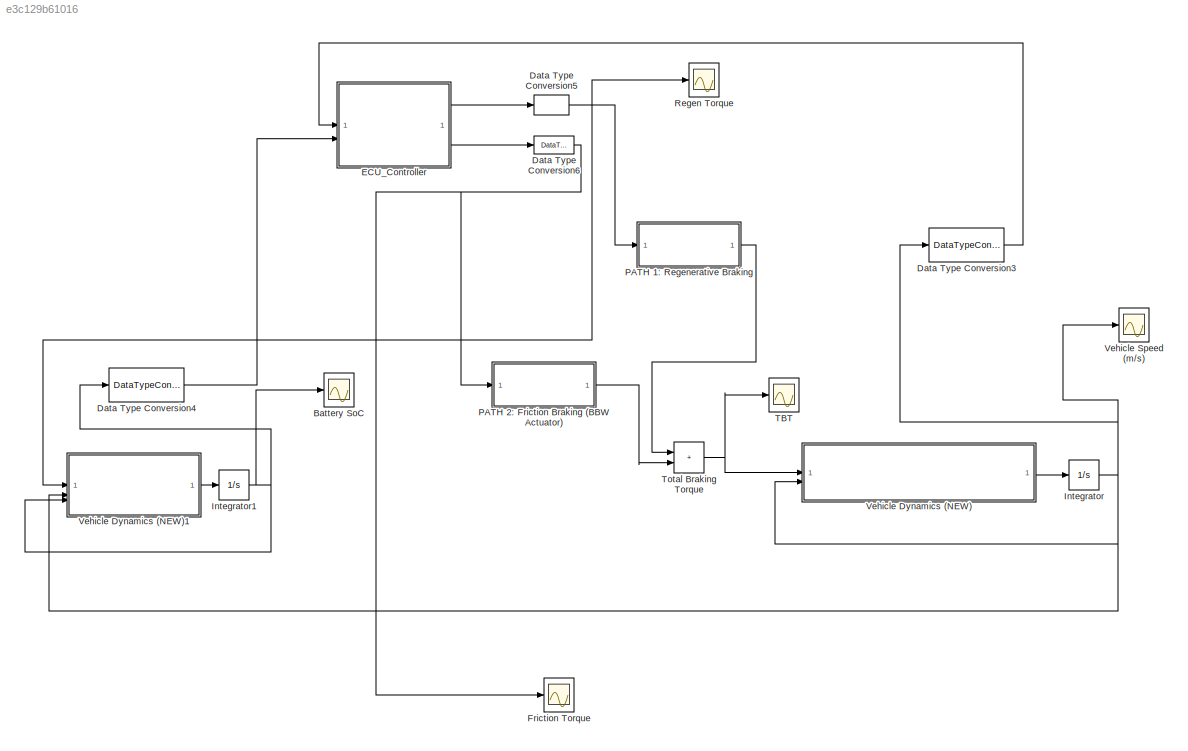
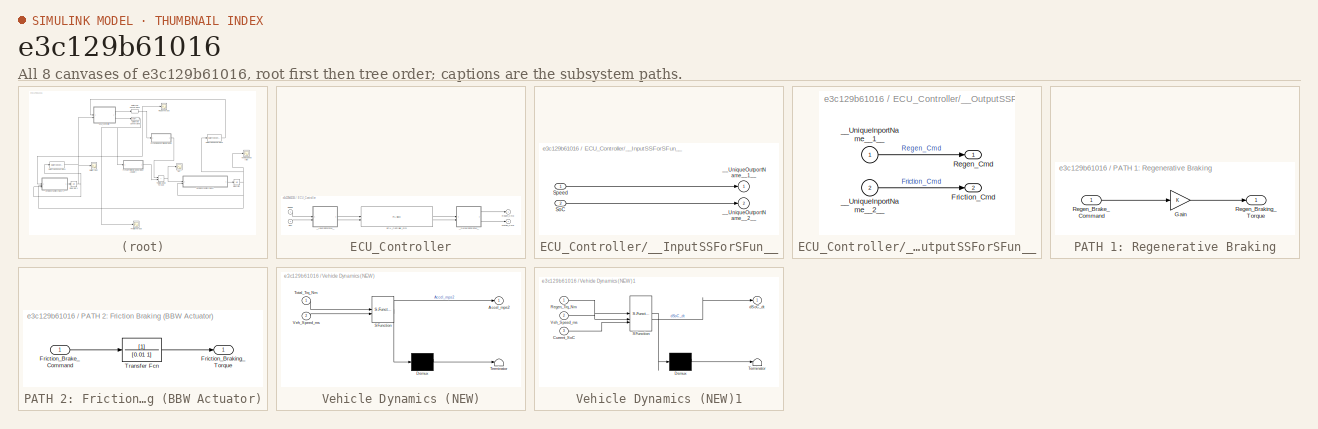
[diagram: thumbnail index - all 8 canvases of the model, root first then tree order]
MODEL slx_e3c129b61016
KIND model
CONFIG AbsTol = auto
CONFIG EnableMultiTasking = off
CONFIG FixedStep = auto
CONFIG MaxStep = auto
CONFIG MinStep = auto
CONFIG RelTol = 1e-3
CONFIG SampleTimeConstraint = Unconstrained
CONFIG SolverName = VariableStepAuto
CONFIG StartTime = 0.0
CONFIG StopTime = 300
BLOCK [Scope] Battery SoC
  ActiveDisplayYMaximum = 0.81206387174711381
  ActiveDisplayYMinimum = 0.69142515427597573
  DataLoggingVariableName = ScopeData4
  Floating = off
  GraphicalSettings = {"Style":{"BackgroundColor":[0.12941176470588237,0.12941176470588237,0.12941176470588237],"AxesColor":[0.07058823529411765,0.07058823529411765,0.07058823529411765],"LabelsColor":[0.8509803921568627,0.8509803921568627,0.8509803921568627],"PreserveColors":false,"Visible":[true],"LineStyle":["-"],"LineWidth":[1.5],"BarWidth":[0.9],"LineColor":["auto"],"LineFaceAlpha":[1],"LineEdgeAlpha":[1],"Marker":...<+2039ch>
  MultipleDisplayCache = [{"MaxYLimMag":0.81206387174711381,"MaxYLimReal":0.81206387174711381,"MinYLimMag":0.69142515427597573,"MinYLimReal":0.69142515427597573,"PlotAsMagnitudePhase":false,"ShowGrid":true,"ShowLegend":false,"Title":"%<SignalLabel>","YLabel":""}]
  NumInputPorts = 1
  ScopeFrameLocation = window
  WasSavedAsWebScope = on
  WindowPosition = [113.000000,448.000000,651.000000,369.000000,]
BLOCK [DataTypeConversion] Data Type Conversion3
  OutDataTypeStr = single
  RndMeth = Floor
  SaturateOnIntegerOverflow = off
BLOCK [DataTypeConversion] Data Type Conversion4
  OutDataTypeStr = single
  RndMeth = Floor
  SaturateOnIntegerOverflow = off
BLOCK [DataTypeConversion] Data Type Conversion5
  OutDataTypeStr = double
  RndMeth = Floor
  SaturateOnIntegerOverflow = off
BLOCK [DataTypeConversion] Data Type Conversion6
  OutDataTypeStr = double
  RndMeth = Floor
  SaturateOnIntegerOverflow = off
BLOCK [SubSystem] ECU_Controller
  DialogController = pil_create_dialog
  LoadFcn = try\n   if ~strcmp(rtw.pil.getPILVersion, '25.2 (R2025b)_15')\n      set_param(gcb, 'DialogController', '');\n      set_param(gcb, 'DialogControllerArgs', '');\n   end\ncatch e\n      set_param(gcb, 'DialogController', '');\n      set_param(gcb, 'DialogControllerArgs', '');\nend
BLOCK [Reference] ECU_Controller/ECU_Controller_sfcn  REF=pil_lib/PIL Block
  SourceBlock = pil_lib/PIL Block
  SourceType = XILBlock
BLOCK [Outport] ECU_Controller/Friction_Cmd
  OutDataTypeStr = single
  Port = 2
BLOCK [Outport] ECU_Controller/Regen_Cmd
  OutDataTypeStr = single
BLOCK [Inport] ECU_Controller/SoC
  OutDataTypeStr = single
  Port = 2
BLOCK [Inport] ECU_Controller/Speed
  OutDataTypeStr = single
BLOCK [SubSystem] ECU_Controller/__InputSSForSFun__
  PermitHierarchicalResolution = ExplicitOnly
BLOCK [Inport] ECU_Controller/__InputSSForSFun__/SoC
  OutDataTypeStr = single
  Port = 2
BLOCK [Inport] ECU_Controller/__InputSSForSFun__/Speed
  OutDataTypeStr = single
BLOCK [Outport] ECU_Controller/__InputSSForSFun__/__UniqueOutportName__1__
BLOCK [Outport] ECU_Controller/__InputSSForSFun__/__UniqueOutportName__2__
  Port = 2
BLOCK [SubSystem] ECU_Controller/__OutputSSForSFun__
  PermitHierarchicalResolution = ExplicitOnly
BLOCK [Outport] ECU_Controller/__OutputSSForSFun__/Friction_Cmd
  OutDataTypeStr = single
  Port = 2
BLOCK [Outport] ECU_Controller/__OutputSSForSFun__/Regen_Cmd
  OutDataTypeStr = single
BLOCK [Inport] ECU_Controller/__OutputSSForSFun__/__UniqueInportName__1__
BLOCK [Inport] ECU_Controller/__OutputSSForSFun__/__UniqueInportName__2__
  Port = 2
BLOCK [Scope] Friction Torque
  ActiveDisplayYMaximum = 562.06402587890614
  ActiveDisplayYMinimum = -5058.5762329101562
  DataLoggingVariableName = ScopeData3
  Floating = off
  GraphicalSettings = {"Style":{"BackgroundColor":[0.12941176470588237,0.12941176470588237,0.12941176470588237],"AxesColor":[0.07058823529411765,0.07058823529411765,0.07058823529411765],"LabelsColor":[0.8509803921568627,0.8509803921568627,0.8509803921568627],"PreserveColors":false,"Visible":[true],"LineStyle":["-"],"LineWidth":[1.5],"BarWidth":[0.9],"LineColor":["auto"],"LineFaceAlpha":[1],"LineEdgeAlpha":[1],"Marker":...<+2025ch>  <repeated x3 — deduplicated; at blocks: Friction Torque, Regen Torque, TBT>
  MultipleDisplayCache = [{"MaxYLimMag":5058.5762329101562,"MaxYLimReal":562.06402587890614,"MinYLimMag":0,"MinYLimReal":-5058.5762329101562,"PlotAsMagnitudePhase":false,"ShowGrid":true,"ShowLegend":false,"Title":"%<SignalLabel>","YLabel":""}]
  NumInputPorts = 1
  ScopeFrameLocation = window
  WasSavedAsWebScope = on
  WindowPosition = [765.000000,66.000000,724.000000,374.000000,]
BLOCK [Integrator] Integrator
BLOCK [Integrator] Integrator1
  InitialCondition = 0.8
  LimitOutput = on
  LowerSaturationLimit = 0
  UpperSaturationLimit = 1
BLOCK [SubSystem] PATH 1: Regenerative Braking
BLOCK [Gain] PATH 1: Regenerative Braking/Gain
BLOCK [Inport] PATH 1: Regenerative Braking/Regen_Brake_Command
BLOCK [Outport] PATH 1: Regenerative Braking/Regen_Braking_Torque
BLOCK [SubSystem] PATH 2: Friction Braking (BBW Actuator)
BLOCK [Inport] PATH 2: Friction Braking (BBW Actuator)/Friction_Brake_Command
BLOCK [Outport] PATH 2: Friction Braking (BBW Actuator)/Friction_Braking_Torque
BLOCK [TransferFcn] PATH 2: Friction Braking (BBW Actuator)/Transfer Fcn
  Denominator = [0.01 1]
BLOCK [Scope] Regen Torque
  ActiveDisplayYMaximum = 3462.5
  ActiveDisplayYMinimum = -3162.5
  DataLoggingVariableName = ScopeData2
  Floating = off
  MultipleDisplayCache = [{"MaxYLimMag":3462.5,"MaxYLimReal":3462.5,"MinYLimMag":0,"MinYLimReal":-3162.5,"PlotAsMagnitudePhase":false,"ShowGrid":true,"ShowLegend":false,"Title":"%<SignalLabel>","YLabel":""}]
  NumInputPorts = 1
  ScopeFrameLocation = window
  WasSavedAsWebScope = on
  WindowPosition = [765.000000,443.000000,722.000000,374.000000,]
BLOCK [Scope] TBT
  ActiveDisplayYMaximum = 3187.5
  ActiveDisplayYMinimum = -687.5
  Floating = off
  MultipleDisplayCache = [{"MaxYLimMag":3187.5,"MaxYLimReal":3187.5,"MinYLimMag":0,"MinYLimReal":-687.5,"PlotAsMagnitudePhase":false,"ShowGrid":true,"ShowLegend":false,"Title":"%<SignalLabel>","YLabel":""}]
  NumInputPorts = 1
  ScopeFrameLocation = window
  WasSavedAsWebScope = on
  WindowPosition = [1.000000,1.000000,1536.000000,841.000000,]
BLOCK [Sum] Total Braking Torque
  IconShape = rectangular
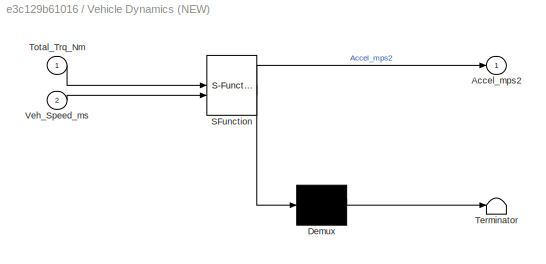
BLOCK [SubSystem] Vehicle Dynamics (NEW)
  ErrorFcn = Stateflow.Translate.translate
  PermitHierarchicalResolution = ExplicitOnly
  SFBlockType = MATLAB Function
  TreatAsAtomicUnit = on
BLOCK [Demux] Vehicle Dynamics (NEW)/ Demux 
  Outputs = 1
BLOCK [S-Function] Vehicle Dynamics (NEW)/ SFunction 
  EnableBusSupport = off
  FunctionName = sf_sfun
  PortCounts = [2 2]
  SFcnIsStateOwnerBlock = off
  SFunctionDeploymentMode = off
  Tag = Stateflow S-Function 2
BLOCK [Terminator] Vehicle Dynamics (NEW)/ Terminator 
BLOCK [Outport] Vehicle Dynamics (NEW)/Accel_mps2
BLOCK [Inport] Vehicle Dynamics (NEW)/Total_Trq_Nm
BLOCK [Inport] Vehicle Dynamics (NEW)/Veh_Speed_ms
  Port = 2
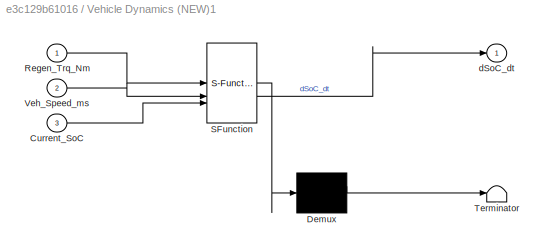
BLOCK [SubSystem] Vehicle Dynamics (NEW)1
  ErrorFcn = Stateflow.Translate.translate
  PermitHierarchicalResolution = ExplicitOnly
  SFBlockType = MATLAB Function
  TreatAsAtomicUnit = on
BLOCK [Demux] Vehicle Dynamics (NEW)1/ Demux 
  Outputs = 1
BLOCK [S-Function] Vehicle Dynamics (NEW)1/ SFunction 
  EnableBusSupport = off
  FunctionName = sf_sfun
  PortCounts = [3 2]
  SFcnIsStateOwnerBlock = off
  SFunctionDeploymentMode = off
  Tag = Stateflow S-Function 4
BLOCK [Terminator] Vehicle Dynamics (NEW)1/ Terminator 
BLOCK [Inport] Vehicle Dynamics (NEW)1/Current_SoC
  Port = 3
BLOCK [Inport] Vehicle Dynamics (NEW)1/Regen_Trq_Nm
BLOCK [Inport] Vehicle Dynamics (NEW)1/Veh_Speed_ms
  Port = 2
BLOCK [Outport] Vehicle Dynamics (NEW)1/dSoC_dt
BLOCK [Scope] Vehicle Speed (m//s)
  ActiveDisplayYMaximum = 50.193637175537333
  ActiveDisplayYMinimum = -5.5770707972819249
  DataLoggingVariableName = ScopeData1
  Floating = off
  GraphicalSettings = {"AxesScalingProperties":{"AlignXAxis":"Center","AlignYAxis":"Center","AutoScaleXAxisLimits":false,"AxesScaling":"Manual","AxesScalingNumUpdates":10,"ExpandOnly":true,"ScaleAxesLimitsAtStop":false,"XAxisDataRange":100,"YAxisDataRange":80},"DisplayProperties":{"ColorOrder":["auto","auto","auto","auto","auto","auto","auto","auto","auto","auto","auto","auto","auto","auto","auto","auto","auto","auto",...<+2012ch>
  MultipleDisplayCache = [{"MaxYLimMag":50.193637175537333,"MaxYLimReal":50.193637175537333,"MinYLimMag":0,"MinYLimReal":-5.5770707972819249,"PlotAsMagnitudePhase":false,"ShowGrid":true,"ShowLegend":false,"Title":"%<SignalLabel>","YLabel":""}]
  NumInputPorts = 1
  ScopeFrameLocation = window
  WasSavedAsWebScope = on
  WindowPosition = [111.000000,68.000000,650.000000,371.000000,]
LINE Data Type Conversion3:1 -> ECU_Controller:1
LINE Data Type Conversion4:1 -> ECU_Controller:2
NET Data Type Conversion5:1 -> PATH 1: Regenerative Braking:1, Regen Torque:1, Vehicle Dynamics (NEW)1:1
NET Data Type Conversion6:1 -> Friction Torque:1, PATH 2: Friction Braking (BBW Actuator):1
LINE ECU_Controller/ECU_Controller_sfcn:1 -> ECU_Controller/__OutputSSForSFun__:1
LINE ECU_Controller/ECU_Controller_sfcn:2 -> ECU_Controller/__OutputSSForSFun__:2
LINE ECU_Controller/SoC:1 -> ECU_Controller/__InputSSForSFun__:2
LINE ECU_Controller/Speed:1 -> ECU_Controller/__InputSSForSFun__:1
LINE ECU_Controller/__InputSSForSFun__/SoC:1 -> ECU_Controller/__InputSSForSFun__/__UniqueOutportName__2__:1
LINE ECU_Controller/__InputSSForSFun__/Speed:1 -> ECU_Controller/__InputSSForSFun__/__UniqueOutportName__1__:1
LINE ECU_Controller/__InputSSForSFun__:1 -> ECU_Controller/ECU_Controller_sfcn:1
LINE ECU_Controller/__InputSSForSFun__:2 -> ECU_Controller/ECU_Controller_sfcn:2
LINE ECU_Controller/__OutputSSForSFun__/__UniqueInportName__1__:1 -> ECU_Controller/__OutputSSForSFun__/Regen_Cmd:1
LINE ECU_Controller/__OutputSSForSFun__/__UniqueInportName__2__:1 -> ECU_Controller/__OutputSSForSFun__/Friction_Cmd:1
LINE ECU_Controller/__OutputSSForSFun__:1 -> ECU_Controller/Regen_Cmd:1
LINE ECU_Controller/__OutputSSForSFun__:2 -> ECU_Controller/Friction_Cmd:1
LINE ECU_Controller:1 -> Data Type Conversion5:1
LINE ECU_Controller:2 -> Data Type Conversion6:1
NET Integrator1:1 -> Battery SoC:1, Data Type Conversion4:1, Vehicle Dynamics (NEW)1:3
NET Integrator:1 -> Data Type Conversion3:1, Vehicle Dynamics (NEW)1:2, Vehicle Dynamics (NEW):2, Vehicle Speed (m//s):1
LINE PATH 1: Regenerative Braking/Gain:1 -> PATH 1: Regenerative Braking/Regen_Braking_Torque:1
LINE PATH 1: Regenerative Braking/Regen_Brake_Command:1 -> PATH 1: Regenerative Braking/Gain:1
LINE PATH 1: Regenerative Braking:1 -> Total Braking Torque:1
LINE PATH 2: Friction Braking (BBW Actuator)/Friction_Brake_Command:1 -> PATH 2: Friction Braking (BBW Actuator)/Transfer Fcn:1
LINE PATH 2: Friction Braking (BBW Actuator)/Transfer Fcn:1 -> PATH 2: Friction Braking (BBW Actuator)/Friction_Braking_Torque:1
LINE PATH 2: Friction Braking (BBW Actuator):1 -> Total Braking Torque:2
NET Total Braking Torque:1 -> TBT:1, Vehicle Dynamics (NEW):1
LINE Vehicle Dynamics (NEW)1:1 -> Integrator1:1
LINE Vehicle Dynamics (NEW):1 -> Integrator:1
note: NET lines group one-source signal fan-out (src -> all destinations, sorted); 1:1 wires keep LINE
CHART Vehicle Dynamics (NEW)1 states=1 transitions=1
  STATE_LABEL 'eML_blk_kernel()'
  STATE_LABEL 'SCRIPT:\nfunction dSoC_dt = Battery_Plant_Model(Regen_Trq_Nm, Veh_Speed_ms, Current_SoC)\n    % Battery_Plant_Model - High-Fidelity Thevenin Model\n    %\n    % standard: SAE J1715 / Industry Best Practice\n    % Model Type: 0th Order Equivalent Circuit (Rint) + Coulomb Counting\n    %\n    % Inputs:\n    %   Regen_Trq_Nm  : Motor Torque command (Negative for Regen) [Nm]\n    %   Veh_Speed_ms  : Vehicle Sp...<+3608ch>'
CHART Vehicle Dynamics (NEW) states=1 transitions=1
  STATE_LABEL 'eML_blk_kernel()'
  STATE_LABEL 'SCRIPT:\nfunction Accel_mps2 = Vehicle_Plant_Model(Total_Trq_Nm, Veh_Speed_ms)\n    % Vehicle_Plant_Model (Physics Engine)\n    % Fixed to prevent reversing when braking at standstill.\n\n    % --- 1. Vehicle Parameters ---\n    Mass    = 1600;    % kg\n    Radius  = 0.3;     % m\n    Cd      = 0.22;    % Drag Coefficient\n    Area    = 2.2;     % Frontal Area m^2\n    Crr     = 0.008;   % Rolling Resistanc...<+1255ch>'
CHART  states=0 transitions=0
CHART  states=0 transitions=0
